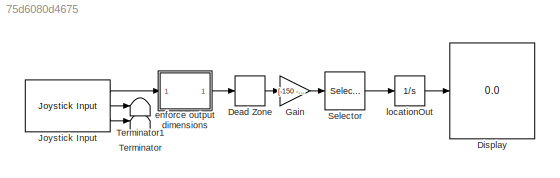
MODEL slx_75d6080d4675
KIND model
CONFIG AbsTol = auto
CONFIG FixedStep = 0.1
CONFIG MaxStep = auto
CONFIG MinStep = auto
CONFIG RelTol = 1e-3
CONFIG SampleTimeConstraint = Unconstrained
CONFIG Solver = FixedStepAuto
CONFIG SolverMode = SingleTasking
CONFIG SolverName = FixedStepAuto
CONFIG StartTime = 0.0
CONFIG StopTime = inf
BLOCK [DeadZone] Dead Zone
  LowerValue = -0.025
  UpperValue = 0.025
BLOCK [Display] Display
  Decimation = 1
  Ports = [1]
BLOCK [Gain] Gain
  Gain = [-150 -150 -150 0.5 0.5]/0.975
  OutDataTypeStr = Inherit: Inherit via internal rule
  ParamDataTypeStr = Inherit: Inherit via internal rule
  SaturateOnIntegerOverflow = off
BLOCK [Reference] Joystick Input  REF=vrlib/Joystick Input
  Ports = [0, 3]
  SourceBlock = vrlib/Joystick Input
  SourceType = Joystick Input
BLOCK [Selector] Selector
  IndexOptions = Index vector (dialog)
  Indices = [2 1 3 4 5]
  InputPortWidth = 5
  OutputSizes = 1
  Ports = [1, 1]
BLOCK [Terminator] Terminator
BLOCK [Terminator] Terminator1
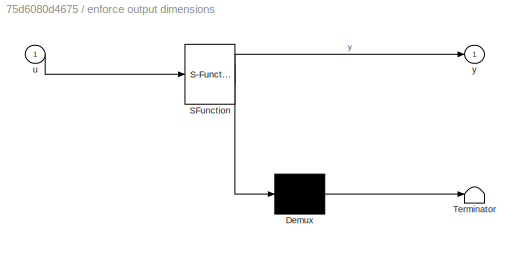
BLOCK [SubSystem] enforce output dimensions
  ErrorFcn = Stateflow.Translate.translate
  PermitHierarchicalResolution = ExplicitOnly
  Ports = [1, 1]
  RequestExecContextInheritance = off
  SFBlockType = MATLAB Function
  TreatAsAtomicUnit = on
  Variant = off
BLOCK [Demux] enforce output dimensions/ Demux 
  Outputs = 1
  Ports = [1, 1]
BLOCK [S-Function] enforce output dimensions/ SFunction 
  EnableBusSupport = on
  FunctionName = sf_sfun
  PortCounts = [1 2]
  Ports = [1, 2]
  SFunctionDeploymentMode = off
  Tag = Stateflow S-Function ps3Sim2016 2
BLOCK [Terminator] enforce output dimensions/ Terminator 
BLOCK [Inport] enforce output dimensions/u
  IconDisplay = Port number
BLOCK [Outport] enforce output dimensions/y
  IconDisplay = Port number
BLOCK [Integrator] locationOut
  InitialCondition = [1085; 0; 1565; pi; -pi/2]
  Ports = [1, 1]
LINE Dead Zone:1 -> Gain:1
LINE Gain:1 -> Selector:1
LINE Joystick Input:1 -> enforce output dimensions:1
LINE Joystick Input:2 -> Terminator1:1
LINE Joystick Input:3 -> Terminator:1
LINE Selector:1 -> locationOut:1
LINE enforce output dimensions:1 -> Dead Zone:1
LINE locationOut:1 -> Display:1
CHART enforce output
dimensions states=1 transitions=1
  STATE_LABEL 'eML_blk_kernel()'
  STATE_LABEL 'SCRIPT:\nfunction y = fcn(u)\n% explicitly output 5 values from analog controller input\n% if there are more, only use the first 5, if there are fewer, append zeros\n    y = zeros(5,1);\n    nAxes = length(u);\n    if nAxes >= 5\n        y = u(1:5);\n    else\n        y(1:nAxes) = u;\n    end\nend\n'
